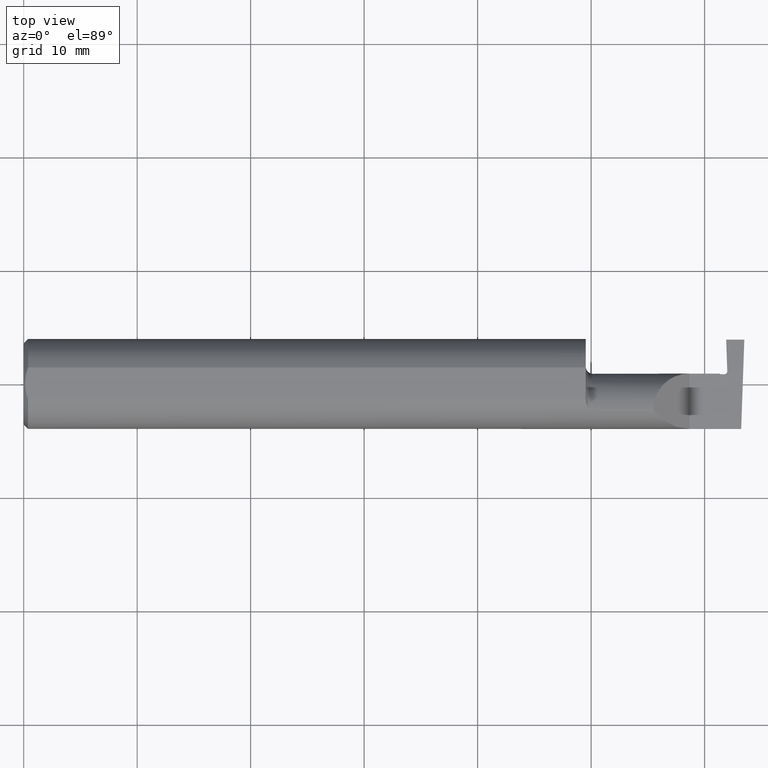
[diagram: clean part render]
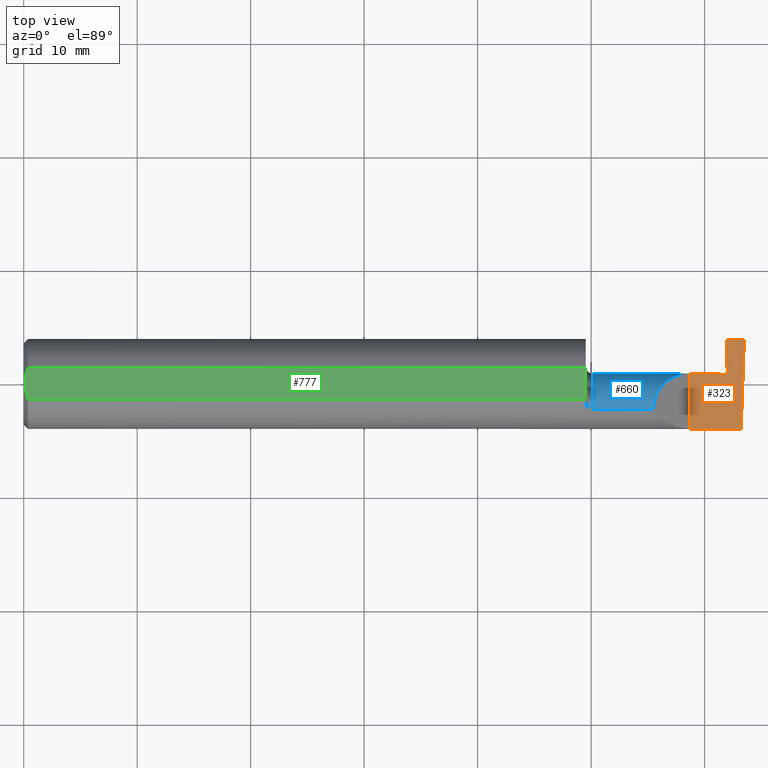
[diagram: same view with three faces highlighted in distinct colors, each labeled with its STEP entity id]
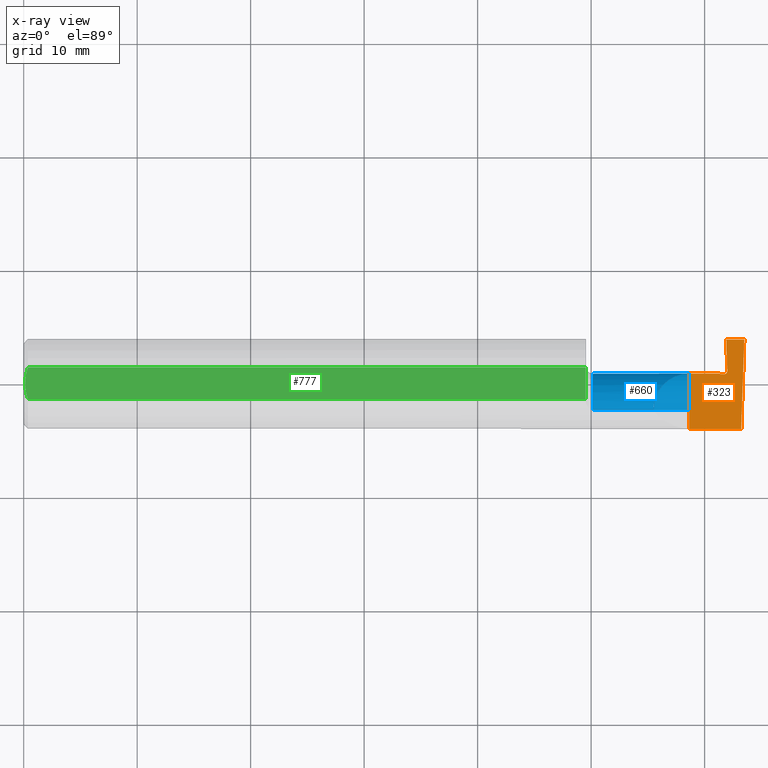
[diagram: x-ray of the same camera — body ghosted, the three highlighted faces saturated]
A machine part, top view with three faces highlighted in distinct colors.
The next image is the same camera in x-ray (body ghosted, the three faces saturated) — at least one of them is partly hidden behind the body in this view.
Their STEP definitions:

[orange] entity #323 — the highlighted planar face has unit normal (-0, 0, -1).
#7 = CARTESIAN_POINT ( 'NONE',  ( 2.417000000003336257, 0.03390000000033277505, -4.777551429560772983E-11 ) ) ;
#10 = ORIENTED_EDGE ( 'NONE', *, *, #647, .T. ) ;
#14 = VECTOR ( 'NONE', #58, 39.37007874015748143 ) ;
#58 = DIRECTION ( 'NONE',  ( -1.000000000000000000, -0.000000000000000000, -0.000000000000000000 ) ) ;
#66 = VECTOR ( 'NONE', #910, 39.37007874015748143 ) ;
#77 = CARTESIAN_POINT ( 'NONE',  ( 2.430835189204357150, 0.03390000000002217628, -4.660096830738944284E-11 ) ) ;
#90 = EDGE_CURVE ( 'NONE', #762, #340, #114, .T. ) ;
#91 = CARTESIAN_POINT ( 'NONE',  ( 2.310000000000000053, -0.1560999999999999888, 2.326828918379970872E-17 ) ) ;
#98 = CARTESIAN_POINT ( 'NONE',  ( 2.441039237855853195, 0.03823136167752719944, 1.232208425506012913E-11 ) ) ;
#100 = B_SPLINE_CURVE_WITH_KNOTS ( 'NONE', 1,
 ( #266, #778 ),
 .UNSPECIFIED., .F., .F.,
 ( 2, 2 ),
 ( 0.000000000000000000, 7.184204902249669532E-05 ),
 .UNSPECIFIED. ) ;
#114 =( BOUNDED_CURVE ( )  B_SPLINE_CURVE ( 3, ( #863, #98, #433, #350 ),
 .UNSPECIFIED., .F., .F. ) 
 B_SPLINE_CURVE_WITH_KNOTS ( ( 4, 4 ),
 ( 2.168404344971008868E-18, 0.0004056548995587283177 ),
 .UNSPECIFIED. ) 
 CURVE ( )  GEOMETRIC_REPRESENTATION_ITEM ( )  RATIONAL_B_SPLINE_CURVE ( ( 1.000000000000000000, 0.7964389136393335011, 0.7964389136393335011, 1.000000000000000000 ) ) 
 REPRESENTATION_ITEM ( '' )  );
#138 = DIRECTION ( 'NONE',  ( -0.000000000000000000, 1.000000000000000000, -0.000000000000000000 ) ) ;
#141 = ORIENTED_EDGE ( 'NONE', *, *, #720, .T. ) ;
#169 = VECTOR ( 'NONE', #138, 39.37007874015748143 ) ;
#219 = EDGE_CURVE ( 'NONE', #577, #321, #821, .T. ) ;
#220 = ORIENTED_EDGE ( 'NONE', *, *, #815, .T. ) ;
#229 = CARTESIAN_POINT ( 'NONE',  ( 3.749399456654646757E-32, -0.1560999999999999888, 3.061616997868384127E-16 ) ) ;
#241 = EDGE_CURVE ( 'NONE', #651, #267, #974, .T. ) ;
#261 = CARTESIAN_POINT ( 'NONE',  ( 2.500000000000000000, 0.1539000000000000090, 0.000000000000000000 ) ) ;
#266 = CARTESIAN_POINT ( 'NONE',  ( 2.417000000003336257, 0.03390000000033277505, -4.777551429560772983E-11 ) ) ;
#267 = VERTEX_POINT ( 'NONE', #299 ) ;
#298 = CARTESIAN_POINT ( 'NONE',  ( 2.440829097470405884, 0.04424899496707516977, 1.272684495525097843E-11 ) ) ;
#299 = CARTESIAN_POINT ( 'NONE',  ( 2.415000000000000036, 0.03590000000000018177, 5.615318129216514978E-18 ) ) ;
#300 = B_SPLINE_CURVE_WITH_KNOTS ( 'NONE', 1,
 ( #766, #955 ),
 .UNSPECIFIED., .F., .F.,
 ( 2, 2 ),
 ( 0.000000000000000000, 0.0003514138057059412734 ),
 .UNSPECIFIED. ) ;
#309 = LINE ( 'NONE', #734, #169 ) ;
#321 = VERTEX_POINT ( 'NONE', #91 ) ;
#323 = ADVANCED_FACE ( 'NONE', ( #583 ), #926, .F. ) ;
#340 = VERTEX_POINT ( 'NONE', #77 ) ;
#350 = CARTESIAN_POINT ( 'NONE',  ( 2.430835189204357150, 0.03390000000002217628, -4.660096830738944284E-11 ) ) ;
#390 = CARTESIAN_POINT ( 'NONE',  ( 1.949999999999999956, 0.03590000000000001523, 6.735557395310447447E-17 ) ) ;
#406 = DIRECTION ( 'NONE',  ( -1.000000000000000000, 0.000000000000000000, 1.224646799147353700E-16 ) ) ;
#412 = VERTEX_POINT ( 'NONE', #470 ) ;
#413 = VECTOR ( 'NONE', #809, 39.37007874015748143 ) ;
#416 = CARTESIAN_POINT ( 'NONE',  ( 2.440829097470405884, 0.04424899496707516977, 1.272684495525097843E-11 ) ) ;
#433 = CARTESIAN_POINT ( 'NONE',  ( 2.436856490504271999, 0.03390000000001390512, 1.197389523081030299E-11 ) ) ;
#448 = EDGE_CURVE ( 'NONE', #321, #651, #309, .T. ) ;
#460 = EDGE_LOOP ( 'NONE', ( #554, #627, #461, #220, #1002, #141, #10, #772, #477 ) ) ;
#461 = ORIENTED_EDGE ( 'NONE', *, *, #482, .F. ) ;
#470 = CARTESIAN_POINT ( 'NONE',  ( 2.436999999986525722, 0.1539000000000000090, -2.694222958124035986E-19 ) ) ;
#477 = ORIENTED_EDGE ( 'NONE', *, *, #448, .F. ) ;
#482 = EDGE_CURVE ( 'NONE', #412, #744, #895, .T. ) ;
#518 = DIRECTION ( 'NONE',  ( -0.03489949670249362784, -0.9993908270190959842, 0.000000000000000000 ) ) ;
#554 = ORIENTED_EDGE ( 'NONE', *, *, #219, .F. ) ;
#577 = VERTEX_POINT ( 'NONE', #999 ) ;
#583 = FACE_OUTER_BOUND ( 'NONE', #460, .T. ) ;
#610 = EDGE_CURVE ( 'NONE', #744, #577, #1024, .T. ) ;
#627 = ORIENTED_EDGE ( 'NONE', *, *, #610, .F. ) ;
#647 = EDGE_CURVE ( 'NONE', #1048, #267, #100, .T. ) ;
#651 = VERTEX_POINT ( 'NONE', #1028 ) ;
#659 = CARTESIAN_POINT ( 'NONE',  ( 2.500000000000000000, -0.2000000000000000111, 0.000000000000000000 ) ) ;
#720 = EDGE_CURVE ( 'NONE', #340, #1048, #300, .T. ) ;
#734 = CARTESIAN_POINT ( 'NONE',  ( 2.310000000000000053, -0.2000000000000000111, 2.326828918379970872E-17 ) ) ;
#741 = AXIS2_PLACEMENT_3D ( 'NONE', #659, #1001, #406 ) ;
#744 = VERTEX_POINT ( 'NONE', #1016 ) ;
#749 = VECTOR ( 'NONE', #518, 39.37007874015748143 ) ;
#762 = VERTEX_POINT ( 'NONE', #416 ) ;
#766 = CARTESIAN_POINT ( 'NONE',  ( 2.430835189204357150, 0.03390000000002217628, -4.660096830738944284E-11 ) ) ;
#772 = ORIENTED_EDGE ( 'NONE', *, *, #241, .F. ) ;
#778 = CARTESIAN_POINT ( 'NONE',  ( 2.415000000000000036, 0.03590000000000018177, 5.615318129216514978E-18 ) ) ;
#809 = DIRECTION ( 'NONE',  ( 1.000000000000000000, 0.000000000000000000, 0.000000000000000000 ) ) ;
#815 = EDGE_CURVE ( 'NONE', #412, #762, #901, .T. ) ;
#821 = LINE ( 'NONE', #229, #14 ) ;
#863 = CARTESIAN_POINT ( 'NONE',  ( 2.440829097470405884, 0.04424899496707516977, 1.272684495525097843E-11 ) ) ;
#895 = LINE ( 'NONE', #977, #66 ) ;
#901 = B_SPLINE_CURVE_WITH_KNOTS ( 'NONE', 1,
 ( #1062, #298 ),
 .UNSPECIFIED., .F., .F.,
 ( 2, 2 ),
 ( 6.840614731471598399E-15, 0.002786833191336727557 ),
 .UNSPECIFIED. ) ;
#910 = DIRECTION ( 'NONE',  ( 1.000000000000000000, -0.000000000000000000, -0.000000000000000000 ) ) ;
#926 = PLANE ( 'NONE',  #741 ) ;
#955 = CARTESIAN_POINT ( 'NONE',  ( 2.417000000003336257, 0.03390000000033277505, -4.777551429560772983E-11 ) ) ;
#974 = LINE ( 'NONE', #390, #413 ) ;
#977 = CARTESIAN_POINT ( 'NONE',  ( 2.399999999999999911, 0.1539000000000000090, -2.694222958124035986E-19 ) ) ;
#999 = CARTESIAN_POINT ( 'NONE',  ( 2.489174561457560220, -0.1560999999999999888, 0.000000000000000000 ) ) ;
#1001 = DIRECTION ( 'NONE',  ( -1.224646799147353700E-16, 0.000000000000000000, -1.000000000000000000 ) ) ;
#1002 = ORIENTED_EDGE ( 'NONE', *, *, #90, .T. ) ;
#1016 = CARTESIAN_POINT ( 'NONE',  ( 2.500000000000000000, 0.1539000000000000090, 0.000000000000000000 ) ) ;
#1024 = LINE ( 'NONE', #261, #749 ) ;
#1028 = CARTESIAN_POINT ( 'NONE',  ( 2.310000000000000053, 0.03589999999999998748, 2.326828918379970872E-17 ) ) ;
#1048 = VERTEX_POINT ( 'NONE', #7 ) ;
#1062 = CARTESIAN_POINT ( 'NONE',  ( 2.436999999986525722, 0.1539000000000000090, -2.694222958124035986E-19 ) ) ;

[blue] entity #660 — the highlighted cylindrical surface (edge-blend (fillet) strip) has radius 3.175 mm, axis along (-1, -0, -0).
#6 = AXIS2_PLACEMENT_3D ( 'NONE', #200, #534, #879 ) ;
#11 = CARTESIAN_POINT ( 'NONE',  ( 2.415622632500697975, 0.03509086080992705747, -0.01638619666921843632 ) ) ;
#28 = ORIENTED_EDGE ( 'NONE', *, *, #523, .T. ) ;
#67 = CARTESIAN_POINT ( 'NONE',  ( 2.419913133579710163, -0.07276030881000444817, -0.1241975157240882977 ) ) ;
#101 = CARTESIAN_POINT ( 'NONE',  ( 2.419936579033014734, -0.08088281986342907293, -0.1249999999999948652 ) ) ;
#142 = CARTESIAN_POINT ( 'NONE',  ( 1.974999999999999867, -0.08909999999999998477, 0.1250000000000000000 ) ) ;
#146 = ORIENTED_EDGE ( 'NONE', *, *, #375, .F. ) ;
#167 = CARTESIAN_POINT ( 'NONE',  ( 2.419928413813420498, -0.08909999999992179731, -0.1250000000000000000 ) ) ;
#172 = CARTESIAN_POINT ( 'NONE',  ( 1.949999999999999956, -0.08909999999999998477, 0.000000000000000000 ) ) ;
#173 = ORIENTED_EDGE ( 'NONE', *, *, #836, .F. ) ;
#178 = CARTESIAN_POINT ( 'NONE',  ( 2.418932949413612477, -0.01281922346084731976, -0.09936792981080162790 ) ) ;
#200 = CARTESIAN_POINT ( 'NONE',  ( 1.974999999999999867, -0.08909999999999998477, 0.000000000000000000 ) ) ;
#208 = VERTEX_POINT ( 'NONE', #640 ) ;
#237 = CARTESIAN_POINT ( 'NONE',  ( 1.949999999999999956, -0.08909999999999995701, -0.1250000000000000000 ) ) ;
#241 = EDGE_CURVE ( 'NONE', #651, #267, #974, .T. ) ;
#244 = ORIENTED_EDGE ( 'NONE', *, *, #241, .T. ) ;
#262 = EDGE_CURVE ( 'NONE', #208, #651, #560, .T. ) ;
#267 = VERTEX_POINT ( 'NONE', #299 ) ;
#285 = CIRCLE ( 'NONE', #6, 0.1250000000000000000 ) ;
#299 = CARTESIAN_POINT ( 'NONE',  ( 2.415000000000000036, 0.03590000000000018177, 5.615318129216514978E-18 ) ) ;
#316 = CARTESIAN_POINT ( 'NONE',  ( 2.236776695296637474, 0.03590000000000000829, 0.07322330470336313457 ) ) ;
#317 = ORIENTED_EDGE ( 'NONE', *, *, #611, .T. ) ;
#341 = CARTESIAN_POINT ( 'NONE',  ( 2.417473717248159737, 0.01939704841771696872, -0.06261605633057265585 ) ) ;
#352 = CARTESIAN_POINT ( 'NONE',  ( 2.416576885155778509, 0.02947894818762726230, -0.04037900978775441768 ) ) ;
#375 = EDGE_CURVE ( 'NONE', #208, #468, #795, .T. ) ;
#390 = CARTESIAN_POINT ( 'NONE',  ( 1.949999999999999956, 0.03590000000000001523, 6.735557395310447447E-17 ) ) ;
#413 = VECTOR ( 'NONE', #809, 39.37007874015748143 ) ;
#423 = VECTOR ( 'NONE', #745, 39.37007874015748143 ) ;
#432 = DIRECTION ( 'NONE',  ( 0.000000000000000000, 0.000000000000000000, 1.000000000000000000 ) ) ;
#436 = CARTESIAN_POINT ( 'NONE',  ( 2.416247326577364962, 0.03189735472286316098, -0.03242711057221415311 ) ) ;
#468 = VERTEX_POINT ( 'NONE', #142 ) ;
#483 = LINE ( 'NONE', #237, #423 ) ;
#511 = CARTESIAN_POINT ( 'NONE',  ( 2.418218111788288827, 0.005034130209077982733, -0.08264368967176702330 ) ) ;
#523 = EDGE_CURVE ( 'NONE', #267, #620, #988, .T. ) ;
#534 = DIRECTION ( 'NONE',  ( -1.000000000000000000, -0.000000000000000000, -0.000000000000000000 ) ) ;
#560 =( BOUNDED_CURVE ( )  B_SPLINE_CURVE ( 3, ( #563, #1063, #316, #979 ),
 .UNSPECIFIED., .F., .F. ) 
 B_SPLINE_CURVE_WITH_KNOTS ( ( 4, 4 ),
 ( 0.000000000000000000, 1.570796326794896558 ),
 .UNSPECIFIED. ) 
 CURVE ( )  GEOMETRIC_REPRESENTATION_ITEM ( )  RATIONAL_B_SPLINE_CURVE ( ( 1.000000000000000000, 0.8047378541243649375, 0.8047378541243649375, 1.000000000000000000 ) ) 
 REPRESENTATION_ITEM ( '' )  );
#563 = CARTESIAN_POINT ( 'NONE',  ( 2.185000000000000941, -0.08909999999999998477, 0.1250000000000000000 ) ) ;
#587 = CARTESIAN_POINT ( 'NONE',  ( 2.419648038693582581, -0.04875164938144829069, -0.1185892254576376148 ) ) ;
#592 = CARTESIAN_POINT ( 'NONE',  ( 2.419928413813420498, -0.08909999999992179731, -0.1250000000000000000 ) ) ;
#596 = DIRECTION ( 'NONE',  ( -1.000000000000000000, -0.000000000000000000, -0.000000000000000000 ) ) ;
#611 = EDGE_CURVE ( 'NONE', #620, #634, #483, .T. ) ;
#620 = VERTEX_POINT ( 'NONE', #592 ) ;
#634 = VERTEX_POINT ( 'NONE', #938 ) ;
#640 = CARTESIAN_POINT ( 'NONE',  ( 2.185000000000000941, -0.08909999999999998477, 0.1250000000000000000 ) ) ;
#649 = VECTOR ( 'NONE', #596, 39.37007874015748143 ) ;
#651 = VERTEX_POINT ( 'NONE', #1028 ) ;
#660 = ADVANCED_FACE ( 'NONE', ( #674 ), #700, .T. ) ;
#672 = AXIS2_PLACEMENT_3D ( 'NONE', #172, #1037, #432 ) ;
#674 = FACE_OUTER_BOUND ( 'NONE', #1009, .T. ) ;
#685 = CARTESIAN_POINT ( 'NONE',  ( 2.418696336086201715, -0.006474724114570023017, -0.09415029313623811402 ) ) ;
#692 = CARTESIAN_POINT ( 'NONE',  ( 1.949999999999999956, -0.08909999999999998477, 0.1250000000000000000 ) ) ;
#700 = CYLINDRICAL_SURFACE ( 'NONE', #672, 0.1250000000000000000 ) ;
#745 = DIRECTION ( 'NONE',  ( -1.000000000000000000, -0.000000000000000000, -0.000000000000000000 ) ) ;
#768 = CARTESIAN_POINT ( 'NONE',  ( 2.415320311176290868, 0.03589999999680400927, -0.008251322117533599343 ) ) ;
#774 = CARTESIAN_POINT ( 'NONE',  ( 2.417198248325828747, 0.02323143260366472909, -0.05543537348960395766 ) ) ;
#780 = CARTESIAN_POINT ( 'NONE',  ( 2.417975381372873933, 0.01027685314016494982, -0.07626677576578126672 ) ) ;
#795 = LINE ( 'NONE', #692, #649 ) ;
#807 = CARTESIAN_POINT ( 'NONE',  ( 2.415000000000000036, 0.03590000000000018177, 5.615318129216514978E-18 ) ) ;
#809 = DIRECTION ( 'NONE',  ( 1.000000000000000000, 0.000000000000000000, 0.000000000000000000 ) ) ;
#836 = EDGE_CURVE ( 'NONE', #468, #634, #285, .T. ) ;
#853 = CARTESIAN_POINT ( 'NONE',  ( 2.419758331488836678, -0.05670268960605161918, -0.1210058787805689262 ) ) ;
#879 = DIRECTION ( 'NONE',  ( 0.000000000000000000, 0.000000000000000000, 1.000000000000000000 ) ) ;
#913 = ORIENTED_EDGE ( 'NONE', *, *, #262, .T. ) ;
#933 = CARTESIAN_POINT ( 'NONE',  ( 2.419413333035067559, -0.03369781992516959757, -0.1123476400964259631 ) ) ;
#938 = CARTESIAN_POINT ( 'NONE',  ( 1.974999999999999867, -0.08909999999999995701, -0.1250000000000000000 ) ) ;
#943 = CARTESIAN_POINT ( 'NONE',  ( 2.419286192701861182, -0.02650699334109251834, -0.1085120171303553122 ) ) ;
#974 = LINE ( 'NONE', #390, #413 ) ;
#979 = CARTESIAN_POINT ( 'NONE',  ( 2.310000000000000053, 0.03589999999999998748, 2.326828918379970872E-17 ) ) ;
#988 = B_SPLINE_CURVE_WITH_KNOTS ( 'NONE', 3,
 ( #807, #768, #11, #436, #352, #774, #341, #780, #511, #685, #178, #943, #933, #587, #853, #67, #101, #167 ),
 .UNSPECIFIED., .F., .F.,
 ( 4, 2, 2, 2, 2, 2, 2, 2, 4 ),
 ( 0.000000000000000000, 0.0006227413584778043049, 0.001245482716955608176, 0.001868224075433412698, 0.002490965433911217653, 0.003113706792389022825, 0.003736448150866826697, 0.004359189509344631001, 0.004981930867822435306 ),
 .UNSPECIFIED. ) ;
#1009 = EDGE_LOOP ( 'NONE', ( #28, #317, #173, #146, #913, #244 ) ) ;
#1028 = CARTESIAN_POINT ( 'NONE',  ( 2.310000000000000053, 0.03589999999999998748, 2.326828918379970872E-17 ) ) ;
#1037 = DIRECTION ( 'NONE',  ( -1.000000000000000000, -0.000000000000000000, -0.000000000000000000 ) ) ;
#1063 = CARTESIAN_POINT ( 'NONE',  ( 2.185000000000000941, -0.01587669529663685714, 0.1250000000000000278 ) ) ;

[green] entity #777 — the highlighted planar face has unit normal (0, -0, 1).
#35 = LINE ( 'NONE', #365, #168 ) ;
#41 = LINE ( 'NONE', #373, #757 ) ;
#72 = EDGE_CURVE ( 'NONE', #615, #202, #41, .T. ) ;
#76 = CARTESIAN_POINT ( 'NONE',  ( 0.004999999999999897755, -0.009384304010803548590, 0.1460999999999999521 ) ) ;
#85 = DIRECTION ( 'NONE',  ( 1.000000000000000000, 0.000000000000000000, 0.000000000000000000 ) ) ;
#159 = CARTESIAN_POINT ( 'NONE',  ( 0.01187749995209270472, 0.04610609988228752537, 0.1460999999999999799 ) ) ;
#168 = VECTOR ( 'NONE', #204, 39.37007874015748143 ) ;
#202 = VERTEX_POINT ( 'NONE', #382 ) ;
#204 = DIRECTION ( 'NONE',  ( -1.000000000000000000, -0.000000000000000000, -0.000000000000000000 ) ) ;
#212 = DIRECTION ( 'NONE',  ( 0.000000000000000000, -0.000000000000000000, 1.000000000000000000 ) ) ;
#223 = CARTESIAN_POINT ( 'NONE',  ( 0.005929349363808920914, 0.01879672308419500643, 0.1460999999999999799 ) ) ;
#238 = CARTESIAN_POINT ( 'NONE',  ( 0.01190375560897317594, -0.04618065518901644934, 0.1460999999999999799 ) ) ;
#253 = VERTEX_POINT ( 'NONE', #311 ) ;
#289 = ORIENTED_EDGE ( 'NONE', *, *, #915, .T. ) ;
#303 = B_SPLINE_CURVE_WITH_KNOTS ( 'NONE', 3,
 ( #829, #76, #572, #399, #238, #1006 ),
 .UNSPECIFIED., .F., .F.,
 ( 4, 2, 4 ),
 ( 0.004704317630101885993, 0.005408659995628783967, 0.006113002361155681942 ),
 .UNSPECIFIED. ) ;
#311 = CARTESIAN_POINT ( 'NONE',  ( 0.004999999999999936787, 2.057148927093534050E-17, 0.1460999999999999799 ) ) ;
#365 = CARTESIAN_POINT ( 'NONE',  ( 0.000000000000000000, 0.05497272050753900657, 0.1460999999999999799 ) ) ;
#373 = CARTESIAN_POINT ( 'NONE',  ( 1.950000000000000178, -0.1561000000000000165, 0.1460999999999999799 ) ) ;
#381 = EDGE_CURVE ( 'NONE', #202, #1077, #35, .T. ) ;
#382 = CARTESIAN_POINT ( 'NONE',  ( 1.950000000000000178, 0.05497272050753900657, 0.1460999999999999799 ) ) ;
#389 = CARTESIAN_POINT ( 'NONE',  ( 0.01499999999999999771, 0.05497272050753900657, 0.1460999999999999799 ) ) ;
#399 = CARTESIAN_POINT ( 'NONE',  ( 0.009356849677355947789, -0.03706298561014172849, 0.1460999999999999799 ) ) ;
#403 = EDGE_LOOP ( 'NONE', ( #937, #841, #1023, #473, #289 ) ) ;
#409 = CARTESIAN_POINT ( 'NONE',  ( 0.009371209226503902576, 0.03711161584255317364, 0.1461000000000000076 ) ) ;
#446 = FACE_OUTER_BOUND ( 'NONE', #403, .T. ) ;
#471 = DIRECTION ( 'NONE',  ( 1.000000000000000000, 0.000000000000000000, -0.000000000000000000 ) ) ;
#473 = ORIENTED_EDGE ( 'NONE', *, *, #970, .T. ) ;
#478 = AXIS2_PLACEMENT_3D ( 'NONE', #712, #212, #471 ) ;
#572 = CARTESIAN_POINT ( 'NONE',  ( 0.005910707775482238607, -0.01866948012536270504, 0.1461000000000000076 ) ) ;
#582 = LINE ( 'NONE', #928, #939 ) ;
#601 = CARTESIAN_POINT ( 'NONE',  ( 1.950000000000000178, -0.05497272050753899270, 0.1460999999999999799 ) ) ;
#615 = VERTEX_POINT ( 'NONE', #601 ) ;
#626 = PLANE ( 'NONE',  #478 ) ;
#712 = CARTESIAN_POINT ( 'NONE',  ( 2.500000000000000000, -0.1561000000000000165, 0.1460999999999999799 ) ) ;
#751 = CARTESIAN_POINT ( 'NONE',  ( 0.004999999999999936787, 2.057148927093534050E-17, 0.1460999999999999799 ) ) ;
#755 = CARTESIAN_POINT ( 'NONE',  ( 0.004999999999999902960, 0.009391435229055663386, 0.1460999999999999799 ) ) ;
#757 = VECTOR ( 'NONE', #942, 39.37007874015748143 ) ;
#777 = ADVANCED_FACE ( 'NONE', ( #446 ), #626, .T. ) ;
#803 = VERTEX_POINT ( 'NONE', #875 ) ;
#829 = CARTESIAN_POINT ( 'NONE',  ( 0.004999999999999936787, 2.057148927093534050E-17, 0.1460999999999999799 ) ) ;
#841 = ORIENTED_EDGE ( 'NONE', *, *, #72, .T. ) ;
#875 = CARTESIAN_POINT ( 'NONE',  ( 0.01499999999999999944, -0.05497272050753900657, 0.1460999999999999799 ) ) ;
#915 = EDGE_CURVE ( 'NONE', #253, #803, #303, .T. ) ;
#928 = CARTESIAN_POINT ( 'NONE',  ( 0.000000000000000000, -0.05497272050753900657, 0.1460999999999999799 ) ) ;
#937 = ORIENTED_EDGE ( 'NONE', *, *, #1065, .T. ) ;
#939 = VECTOR ( 'NONE', #85, 39.37007874015748143 ) ;
#942 = DIRECTION ( 'NONE',  ( -0.000000000000000000, 1.000000000000000000, 0.000000000000000000 ) ) ;
#970 = EDGE_CURVE ( 'NONE', #1077, #253, #1082, .T. ) ;
#1006 = CARTESIAN_POINT ( 'NONE',  ( 0.01499999999999999944, -0.05497272050753900657, 0.1460999999999999799 ) ) ;
#1010 = CARTESIAN_POINT ( 'NONE',  ( 0.01499999999999999771, 0.05497272050753900657, 0.1460999999999999799 ) ) ;
#1023 = ORIENTED_EDGE ( 'NONE', *, *, #381, .T. ) ;
#1065 = EDGE_CURVE ( 'NONE', #803, #615, #582, .T. ) ;
#1077 = VERTEX_POINT ( 'NONE', #1010 ) ;
#1082 = B_SPLINE_CURVE_WITH_KNOTS ( 'NONE', 3,
 ( #389, #159, #409, #223, #755, #751 ),
 .UNSPECIFIED., .F., .F.,
 ( 4, 2, 4 ),
 ( 0.003294562426666346362, 0.003999440028384116178, 0.004704317630101885993 ),
 .UNSPECIFIED. ) ;